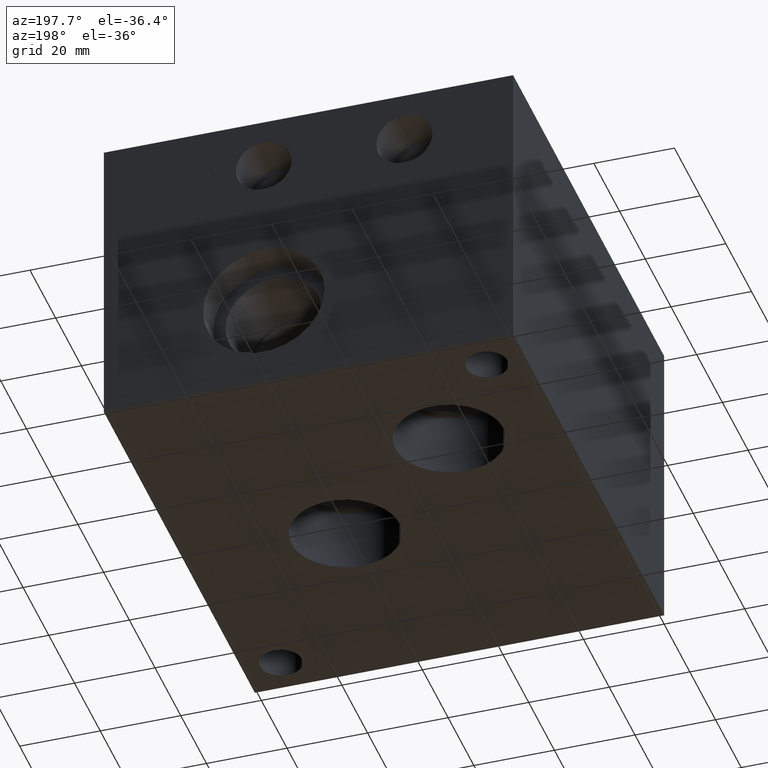
[diagram: clean part render]
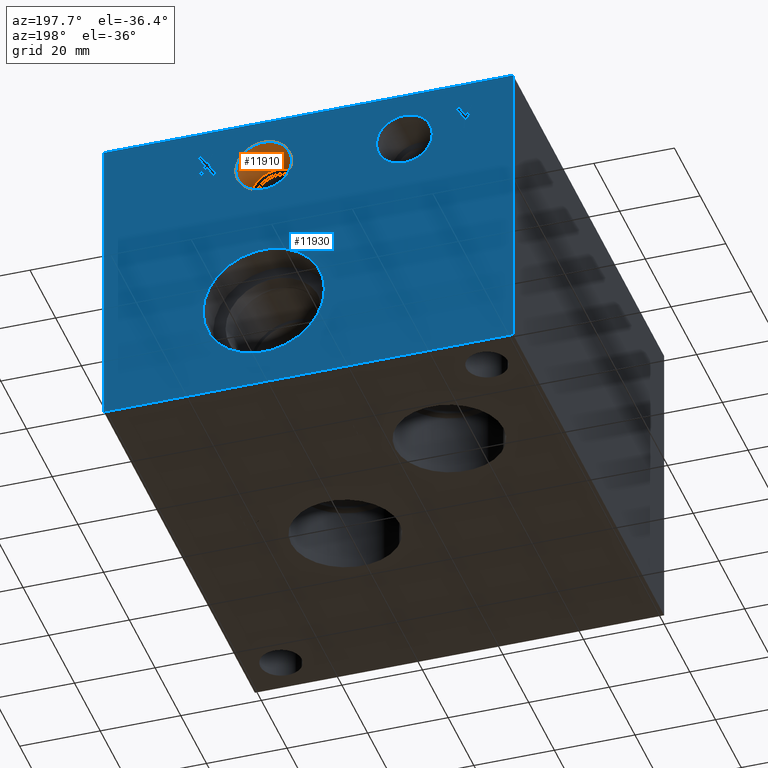
[diagram: same view with the hole feature highlighted: cylindrical wall and planar end face, labeled with their STEP entity ids]
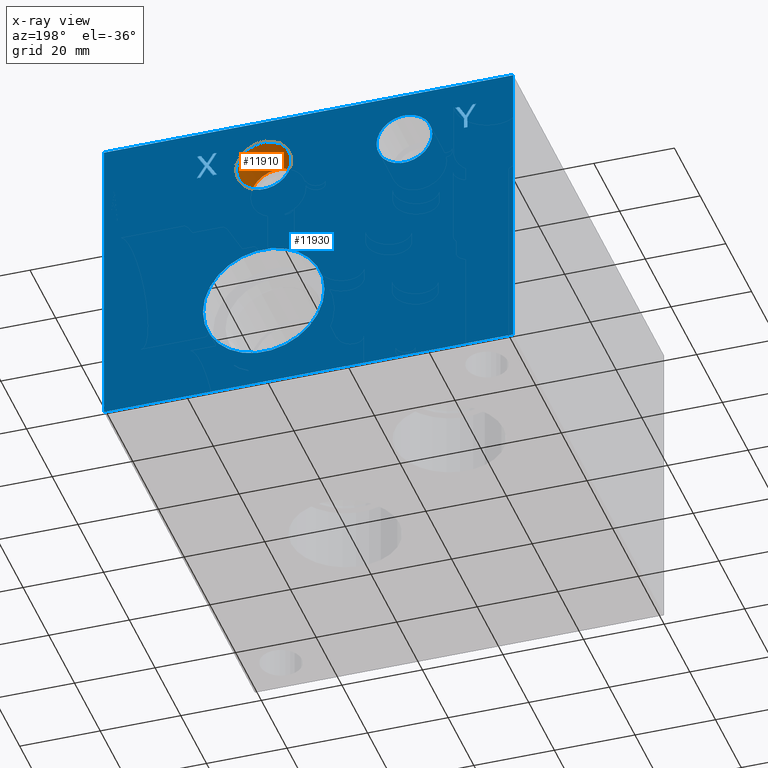
[diagram: x-ray of the same camera — body ghosted, the hole faces saturated]
A machine part, auxiliary view. The highlighted faces form one hole feature of diameter 13.8684 mm: the cylindrical wall (entity #11910, orange) and its adjacent planar end face (entity #11930, blue) — they share a circular edge in the B-rep.
The next image is the same camera in x-ray (body ghosted, the hole faces saturated) — the bore reads through the body.
Wall:
#52=CYLINDRICAL_SURFACE('',#12528,6.9342);
#227=CIRCLE('',#12525,6.9342);
#228=CIRCLE('',#12526,6.9342);
#230=CIRCLE('',#12529,6.9342);
#231=CIRCLE('',#12530,6.9342);
#1321=FACE_OUTER_BOUND('',#1992,.T.);
#1992=EDGE_LOOP('',(#10519,#10520,#10521,#10522,#10523,#10524));
#3204=LINE('',#20091,#4388);
#4388=VECTOR('',#14919,6.9342);
#5761=VERTEX_POINT('',#20080);
#5762=VERTEX_POINT('',#20081);
#5764=VERTEX_POINT('',#20087);
#5765=VERTEX_POINT('',#20088);
#7379=EDGE_CURVE('',#5761,#5762,#227,.T.);
#7380=EDGE_CURVE('',#5762,#5761,#228,.T.);
#7382=EDGE_CURVE('',#5764,#5765,#230,.T.);
#7383=EDGE_CURVE('',#5765,#5764,#231,.T.);
#7384=EDGE_CURVE('',#5765,#5762,#3204,.T.);
#10519=ORIENTED_EDGE('',*,*,#7382,.F.);
#10520=ORIENTED_EDGE('',*,*,#7383,.F.);
#10521=ORIENTED_EDGE('',*,*,#7384,.T.);
#10522=ORIENTED_EDGE('',*,*,#7379,.F.);
#10523=ORIENTED_EDGE('',*,*,#7380,.F.);
#10524=ORIENTED_EDGE('',*,*,#7384,.F.);
#11910=ADVANCED_FACE('',(#1321),#52,.F.);
#12525=AXIS2_PLACEMENT_3D('',#20082,#14907,#14908);
#12526=AXIS2_PLACEMENT_3D('',#20083,#14909,#14910);
#12528=AXIS2_PLACEMENT_3D('',#20086,#14913,#14914);
#12529=AXIS2_PLACEMENT_3D('',#20089,#14915,#14916);
#12530=AXIS2_PLACEMENT_3D('',#20090,#14917,#14918);
#14907=DIRECTION('center_axis',(0.,1.,0.));
#14908=DIRECTION('ref_axis',(1.,0.,0.));
#14909=DIRECTION('center_axis',(0.,1.,0.));
#14910=DIRECTION('ref_axis',(1.,0.,0.));
#14913=DIRECTION('center_axis',(0.,1.,0.));
#14914=DIRECTION('ref_axis',(1.,0.,0.));
#14915=DIRECTION('center_axis',(0.,-1.,0.));
#14916=DIRECTION('ref_axis',(1.,0.,0.));
#14917=DIRECTION('center_axis',(0.,-1.,0.));
#14918=DIRECTION('ref_axis',(1.,0.,0.));
#14919=DIRECTION('',(0.,-1.,0.));
#20080=CARTESIAN_POINT('',(68.8594,106.0704,63.5));
#20081=CARTESIAN_POINT('',(54.991,106.0704,63.5));
#20082=CARTESIAN_POINT('Origin',(61.9252,106.0704,63.5));
#20083=CARTESIAN_POINT('Origin',(61.9252,106.0704,63.5));
#20086=CARTESIAN_POINT('Origin',(61.9252,111.7727,63.5));
#20087=CARTESIAN_POINT('',(68.8594,117.475,63.5));
#20088=CARTESIAN_POINT('',(54.991,117.475,63.5));
#20089=CARTESIAN_POINT('Origin',(61.9252,117.475,63.5));
#20090=CARTESIAN_POINT('Origin',(61.9252,117.475,63.5));
#20091=CARTESIAN_POINT('',(54.991,111.7727,63.5));
End face:
#230=CIRCLE('',#12529,6.9342);
#231=CIRCLE('',#12530,6.9342);
#237=CIRCLE('',#12540,6.9342);
#238=CIRCLE('',#12541,6.9342);
#239=CIRCLE('',#12544,15.08);
#240=CIRCLE('',#12545,15.08);
#336=FACE_BOUND('',#2016,.T.);
#337=FACE_BOUND('',#2017,.T.);
#338=FACE_BOUND('',#2018,.T.);
#339=FACE_BOUND('',#2019,.T.);
#340=FACE_BOUND('',#2020,.T.);
#738=PLANE('',#12583);
#1341=FACE_OUTER_BOUND('',#2015,.T.);
#2015=EDGE_LOOP('',(#10624,#10625,#10626,#10627));
#2016=EDGE_LOOP('',(#10628,#10629,#10630,#10631,#10632,#10633,#10634,#10635,
#10636));
#2017=EDGE_LOOP('',(#10637,#10638,#10639,#10640,#10641,#10642,#10643,#10644,
#10645,#10646,#10647,#10648));
#2018=EDGE_LOOP('',(#10649,#10650));
#2019=EDGE_LOOP('',(#10651,#10652));
#2020=EDGE_LOOP('',(#10653,#10654));
#2073=LINE('',#15261,#3257);
#2502=LINE('',#17845,#3686);
#3080=LINE('',#19561,#4264);
#3084=LINE('',#19569,#4268);
#3087=LINE('',#19575,#4271);
#3090=LINE('',#19581,#4274);
#3093=LINE('',#19587,#4277);
#3096=LINE('',#19593,#4280);
#3099=LINE('',#19599,#4283);
#3102=LINE('',#19605,#4286);
#3105=LINE('',#19610,#4289);
#3107=LINE('',#19616,#4291);
#3111=LINE('',#19624,#4295);
#3114=LINE('',#19630,#4298);
#3117=LINE('',#19636,#4301);
#3120=LINE('',#19642,#4304);
#3123=LINE('',#19648,#4307);
#3126=LINE('',#19654,#4310);
#3129=LINE('',#19660,#4313);
#3132=LINE('',#19666,#4316);
#3135=LINE('',#19672,#4319);
#3138=LINE('',#19678,#4322);
#3141=LINE('',#19683,#4325);
#3221=LINE('',#20196,#4405);
#3222=LINE('',#20198,#4406);
#3257=VECTOR('',#12644,10.);
#3686=VECTOR('',#13333,10.);
#4264=VECTOR('',#14351,10.);
#4268=VECTOR('',#14357,10.);
#4271=VECTOR('',#14362,10.);
#4274=VECTOR('',#14367,10.);
#4277=VECTOR('',#14372,10.);
#4280=VECTOR('',#14377,10.);
#4283=VECTOR('',#14382,10.);
#4286=VECTOR('',#14387,10.);
#4289=VECTOR('',#14392,10.);
#4291=VECTOR('',#14398,10.);
#4295=VECTOR('',#14404,10.);
#4298=VECTOR('',#14409,10.);
#4301=VECTOR('',#14414,10.);
#4304=VECTOR('',#14419,10.);
#4307=VECTOR('',#14424,10.);
#4310=VECTOR('',#14429,10.);
#4313=VECTOR('',#14434,10.);
#4316=VECTOR('',#14439,10.);
#4319=VECTOR('',#14444,10.);
#4322=VECTOR('',#14449,10.);
#4325=VECTOR('',#14454,10.);
#4405=VECTOR('',#15040,10.);
#4406=VECTOR('',#15043,10.);
#4717=VERTEX_POINT('',#15258);
#4718=VERTEX_POINT('',#15260);
#5143=VERTEX_POINT('',#17844);
#5580=VERTEX_POINT('',#19559);
#5581=VERTEX_POINT('',#19560);
#5584=VERTEX_POINT('',#19568);
#5586=VERTEX_POINT('',#19574);
#5588=VERTEX_POINT('',#19580);
#5590=VERTEX_POINT('',#19586);
#5592=VERTEX_POINT('',#19592);
#5594=VERTEX_POINT('',#19598);
#5596=VERTEX_POINT('',#19604);
#5598=VERTEX_POINT('',#19614);
#5599=VERTEX_POINT('',#19615);
#5602=VERTEX_POINT('',#19623);
#5604=VERTEX_POINT('',#19629);
#5606=VERTEX_POINT('',#19635);
#5608=VERTEX_POINT('',#19641);
#5610=VERTEX_POINT('',#19647);
#5612=VERTEX_POINT('',#19653);
#5614=VERTEX_POINT('',#19659);
#5616=VERTEX_POINT('',#19665);
#5618=VERTEX_POINT('',#19671);
#5620=VERTEX_POINT('',#19677);
#5764=VERTEX_POINT('',#20087);
#5765=VERTEX_POINT('',#20088);
#5772=VERTEX_POINT('',#20109);
#5773=VERTEX_POINT('',#20110);
#5774=VERTEX_POINT('',#20117);
#5775=VERTEX_POINT('',#20118);
#5801=VERTEX_POINT('',#20194);
#5852=EDGE_CURVE('',#4718,#4717,#2073,.T.);
#6487=EDGE_CURVE('',#4718,#5143,#2502,.T.);
#7137=EDGE_CURVE('',#5580,#5581,#3080,.T.);
#7141=EDGE_CURVE('',#5584,#5580,#3084,.T.);
#7144=EDGE_CURVE('',#5586,#5584,#3087,.T.);
#7147=EDGE_CURVE('',#5588,#5586,#3090,.T.);
#7150=EDGE_CURVE('',#5590,#5588,#3093,.T.);
#7153=EDGE_CURVE('',#5592,#5590,#3096,.T.);
#7156=EDGE_CURVE('',#5594,#5592,#3099,.T.);
#7159=EDGE_CURVE('',#5596,#5594,#3102,.T.);
#7162=EDGE_CURVE('',#5581,#5596,#3105,.T.);
#7164=EDGE_CURVE('',#5598,#5599,#3107,.T.);
#7168=EDGE_CURVE('',#5602,#5598,#3111,.T.);
#7171=EDGE_CURVE('',#5604,#5602,#3114,.T.);
#7174=EDGE_CURVE('',#5606,#5604,#3117,.T.);
#7177=EDGE_CURVE('',#5608,#5606,#3120,.T.);
#7180=EDGE_CURVE('',#5610,#5608,#3123,.T.);
#7183=EDGE_CURVE('',#5612,#5610,#3126,.T.);
#7186=EDGE_CURVE('',#5614,#5612,#3129,.T.);
#7189=EDGE_CURVE('',#5616,#5614,#3132,.T.);
#7192=EDGE_CURVE('',#5618,#5616,#3135,.T.);
#7195=EDGE_CURVE('',#5620,#5618,#3138,.T.);
#7198=EDGE_CURVE('',#5599,#5620,#3141,.T.);
#7382=EDGE_CURVE('',#5764,#5765,#230,.T.);
#7383=EDGE_CURVE('',#5765,#5764,#231,.T.);
#7392=EDGE_CURVE('',#5772,#5773,#237,.T.);
#7393=EDGE_CURVE('',#5773,#5772,#238,.T.);
#7396=EDGE_CURVE('',#5774,#5775,#239,.T.);
#7397=EDGE_CURVE('',#5775,#5774,#240,.T.);
#7434=EDGE_CURVE('',#4717,#5801,#3221,.T.);
#7435=EDGE_CURVE('',#5143,#5801,#3222,.T.);
#10624=ORIENTED_EDGE('',*,*,#5852,.T.);
#10625=ORIENTED_EDGE('',*,*,#7434,.T.);
#10626=ORIENTED_EDGE('',*,*,#7435,.F.);
#10627=ORIENTED_EDGE('',*,*,#6487,.F.);
#10628=ORIENTED_EDGE('',*,*,#7137,.T.);
#10629=ORIENTED_EDGE('',*,*,#7162,.T.);
#10630=ORIENTED_EDGE('',*,*,#7159,.T.);
#10631=ORIENTED_EDGE('',*,*,#7156,.T.);
#10632=ORIENTED_EDGE('',*,*,#7153,.T.);
#10633=ORIENTED_EDGE('',*,*,#7150,.T.);
#10634=ORIENTED_EDGE('',*,*,#7147,.T.);
#10635=ORIENTED_EDGE('',*,*,#7144,.T.);
#10636=ORIENTED_EDGE('',*,*,#7141,.T.);
#10637=ORIENTED_EDGE('',*,*,#7164,.T.);
#10638=ORIENTED_EDGE('',*,*,#7198,.T.);
#10639=ORIENTED_EDGE('',*,*,#7195,.T.);
#10640=ORIENTED_EDGE('',*,*,#7192,.T.);
#10641=ORIENTED_EDGE('',*,*,#7189,.T.);
#10642=ORIENTED_EDGE('',*,*,#7186,.T.);
#10643=ORIENTED_EDGE('',*,*,#7183,.T.);
#10644=ORIENTED_EDGE('',*,*,#7180,.T.);
#10645=ORIENTED_EDGE('',*,*,#7177,.T.);
#10646=ORIENTED_EDGE('',*,*,#7174,.T.);
#10647=ORIENTED_EDGE('',*,*,#7171,.T.);
#10648=ORIENTED_EDGE('',*,*,#7168,.T.);
#10649=ORIENTED_EDGE('',*,*,#7382,.T.);
#10650=ORIENTED_EDGE('',*,*,#7383,.T.);
#10651=ORIENTED_EDGE('',*,*,#7392,.T.);
#10652=ORIENTED_EDGE('',*,*,#7393,.T.);
#10653=ORIENTED_EDGE('',*,*,#7396,.T.);
#10654=ORIENTED_EDGE('',*,*,#7397,.T.);
#11930=ADVANCED_FACE('',(#1341,#336,#337,#338,#339,#340),#738,.T.);
#12529=AXIS2_PLACEMENT_3D('',#20089,#14915,#14916);
#12530=AXIS2_PLACEMENT_3D('',#20090,#14917,#14918);
#12540=AXIS2_PLACEMENT_3D('',#20111,#14940,#14941);
#12541=AXIS2_PLACEMENT_3D('',#20112,#14942,#14943);
#12544=AXIS2_PLACEMENT_3D('',#20119,#14950,#14951);
#12545=AXIS2_PLACEMENT_3D('',#20120,#14952,#14953);
#12583=AXIS2_PLACEMENT_3D('',#20197,#15041,#15042);
#12644=DIRECTION('',(-1.,0.,0.));
#13333=DIRECTION('',(0.,0.,1.));
#14351=DIRECTION('',(-1.,0.,0.));
#14357=DIRECTION('',(-0.512401080946016,0.,0.85874625602989));
#14362=DIRECTION('',(-0.505352400516574,0.,-0.862913061259439));
#14367=DIRECTION('',(-1.,0.,0.));
#14372=DIRECTION('',(0.509099449897535,0.,0.860707703064186));
#14377=DIRECTION('',(-3.26276643308696E-15,0.,1.));
#14382=DIRECTION('',(1.,0.,0.));
#14387=DIRECTION('',(3.95147308402702E-15,0.,-1.));
#14392=DIRECTION('',(0.51832926375097,0.,-0.855181135397278));
#14398=DIRECTION('',(-0.524855865490426,0.,-0.851191118645099));
#14404=DIRECTION('',(0.535976720217375,0.,-0.844232761378653));
#14409=DIRECTION('',(-1.,0.,-9.75143188193784E-15));
#14414=DIRECTION('',(-0.527625517089338,0.,0.84947708251383));
#14419=DIRECTION('',(-0.519946946895742,0.,-0.85419855561444));
#14424=DIRECTION('',(-1.,0.,0.));
#14429=DIRECTION('',(0.526021863962621,0.,0.850471045146917));
#14434=DIRECTION('',(-0.536610413405568,0.,0.843830115736992));
#14439=DIRECTION('',(1.,0.,0.));
#14444=DIRECTION('',(0.52813598054007,0.,-0.849159811848735));
#14449=DIRECTION('',(0.520607424264652,0.,0.853796175794039));
#14454=DIRECTION('',(1.,0.,9.18086937820747E-15));
#14915=DIRECTION('center_axis',(0.,-1.,0.));
#14916=DIRECTION('ref_axis',(1.,0.,0.));
#14917=DIRECTION('center_axis',(0.,-1.,0.));
#14918=DIRECTION('ref_axis',(1.,0.,0.));
#14940=DIRECTION('center_axis',(0.,-1.,0.));
#14941=DIRECTION('ref_axis',(1.,0.,0.));
#14942=DIRECTION('center_axis',(0.,-1.,0.));
#14943=DIRECTION('ref_axis',(1.,0.,0.));
#14950=DIRECTION('center_axis',(0.,-1.,0.));
#14951=DIRECTION('ref_axis',(1.,0.,0.));
#14952=DIRECTION('center_axis',(0.,-1.,0.));
#14953=DIRECTION('ref_axis',(1.,0.,0.));
#15040=DIRECTION('',(0.,0.,1.));
#15041=DIRECTION('center_axis',(0.,1.,0.));
#15042=DIRECTION('ref_axis',(-1.,0.,0.));
#15043=DIRECTION('',(-1.,0.,0.));
#15258=CARTESIAN_POINT('',(0.,117.475,0.));
#15260=CARTESIAN_POINT('',(101.6,117.475,0.));
#15261=CARTESIAN_POINT('',(101.6,117.475,0.));
#17844=CARTESIAN_POINT('',(101.6,117.475,76.2));
#17845=CARTESIAN_POINT('',(101.6,117.475,0.));
#19559=CARTESIAN_POINT('',(10.0936183774104,117.475,69.8499999046326));
#19560=CARTESIAN_POINT('',(9.19823751565507,117.475,69.8499999046326));
#19561=CARTESIAN_POINT('',(55.8468091887052,117.475,69.8499999046326));
#19568=CARTESIAN_POINT('',(11.7608792924031,117.475,67.0557941119134));
#19569=CARTESIAN_POINT('',(38.3077579331809,117.475,22.565191945425));
#19574=CARTESIAN_POINT('',(13.3972650052662,117.475,69.8499999046326));
#19575=CARTESIAN_POINT('',(9.4299926029495,117.475,63.075695142186));
#19580=CARTESIAN_POINT('',(14.3338128031942,117.475,69.8499999046326));
#19581=CARTESIAN_POINT('',(57.9669064015971,117.475,69.8499999046326));
#19586=CARTESIAN_POINT('',(12.1879862551944,117.475,66.222163654417));
#19587=CARTESIAN_POINT('',(9.26618321943019,117.475,61.2824247090602));
#19592=CARTESIAN_POINT('',(12.1879862551944,117.475,63.5));
#19593=CARTESIAN_POINT('',(12.1879862551945,117.475,31.7499999999999));
#19598=CARTESIAN_POINT('',(11.3440640636549,117.475,63.5));
#19599=CARTESIAN_POINT('',(56.4720320318275,117.475,63.5));
#19604=CARTESIAN_POINT('',(11.3440640636549,117.475,66.3096433937839));
#19605=CARTESIAN_POINT('',(11.344064063655,117.475,33.1548216968918));
#19610=CARTESIAN_POINT('',(37.0918520634918,117.475,23.8288804588016));
#19614=CARTESIAN_POINT('',(75.5348967232233,117.475,66.7213127555105));
#19615=CARTESIAN_POINT('',(73.5485920528925,117.475,63.5));
#19616=CARTESIAN_POINT('',(64.2210599918303,117.475,48.3729661393136));
#19623=CARTESIAN_POINT('',(73.5485920528925,117.475,69.8499999046326));
#19624=CARTESIAN_POINT('',(93.3809527093011,117.475,38.6114629121551));
#19629=CARTESIAN_POINT('',(74.4594105157126,117.475,69.8499999046326));
#19630=CARTESIAN_POINT('',(88.029705257856,117.475,69.8499999046327));
#19635=CARTESIAN_POINT('',(76.0031706221873,117.475,67.3645461332083));
#19636=CARTESIAN_POINT('',(94.6626941115498,117.475,37.3227133153347));
#19641=CARTESIAN_POINT('',(77.5160555265325,117.475,69.8499999046326));
#19642=CARTESIAN_POINT('',(65.260023214469,117.475,49.715089677671));
#19647=CARTESIAN_POINT('',(78.4834785265899,117.475,69.8499999046326));
#19648=CARTESIAN_POINT('',(90.041739263295,117.475,69.8499999046326));
#19653=CARTESIAN_POINT('',(76.5229031913671,117.475,66.6801458193379));
#19654=CARTESIAN_POINT('',(65.0770798065193,117.475,48.1745626039409));
#19659=CARTESIAN_POINT('',(78.5452289308489,117.475,63.5));
#19660=CARTESIAN_POINT('',(96.2412029422733,117.475,35.6727431576078));
#19665=CARTESIAN_POINT('',(77.6344104680289,117.475,63.5));
#19666=CARTESIAN_POINT('',(89.6172052340144,117.475,63.5));
#19671=CARTESIAN_POINT('',(76.0597751594247,117.475,66.0317665746185));
#19672=CARTESIAN_POINT('',(94.4284063993921,117.475,36.4978888946711));
#19677=CARTESIAN_POINT('',(74.51601505295,117.475,63.5));
#19678=CARTESIAN_POINT('',(64.0736886418282,117.475,46.3745846857601));
#19683=CARTESIAN_POINT('',(87.574296026446,117.475,63.5000000000001));
#20087=CARTESIAN_POINT('',(68.8594,117.475,63.5));
#20088=CARTESIAN_POINT('',(54.991,117.475,63.5));
#20089=CARTESIAN_POINT('Origin',(61.9252,117.475,63.5));
#20090=CARTESIAN_POINT('Origin',(61.9252,117.475,63.5));
#20109=CARTESIAN_POINT('',(33.9344,117.475,63.5));
#20110=CARTESIAN_POINT('',(20.066,117.475,63.5));
#20111=CARTESIAN_POINT('Origin',(27.0002,117.475,63.5));
#20112=CARTESIAN_POINT('Origin',(27.0002,117.475,63.5));
#20117=CARTESIAN_POINT('',(77.0052,117.475,23.8252));
#20118=CARTESIAN_POINT('',(46.8452,117.475,23.8252));
#20119=CARTESIAN_POINT('Origin',(61.9252,117.475,23.8252));
#20120=CARTESIAN_POINT('Origin',(61.9252,117.475,23.8252));
#20194=CARTESIAN_POINT('',(0.,117.475,76.2));
#20196=CARTESIAN_POINT('',(0.,117.475,0.));
#20197=CARTESIAN_POINT('Origin',(101.6,117.475,0.));
#20198=CARTESIAN_POINT('',(101.6,117.475,76.2));